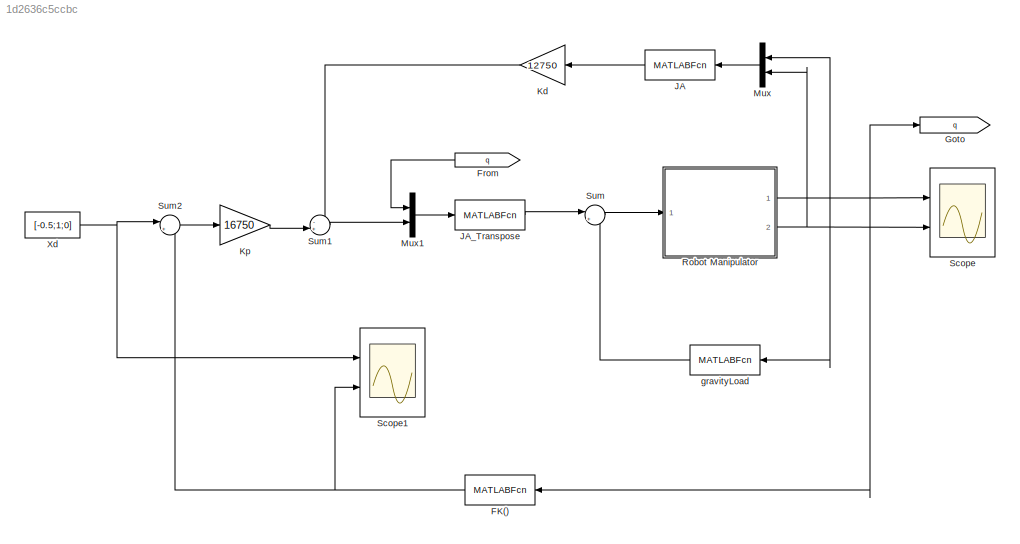
MODEL slx_1d2636c5ccbc
KIND model
CONFIG AbsTol = auto
CONFIG EnableMultiTasking = off
CONFIG FixedStep = auto
CONFIG MaxStep = auto
CONFIG MinStep = auto
CONFIG RelTol = 1e-3
CONFIG SampleTimeConstraint = Unconstrained
CONFIG SolverName = VariableStepAuto
CONFIG StartTime = 0.0
CONFIG StopTime = 10
BLOCK [MATLABFcn] FK()
  MATLABFcn = fwdKine(u)
  Ports = [1, 1]
BLOCK [From] From
  GotoTag = q
BLOCK [Goto] Goto
  GotoTag = q
BLOCK [MATLABFcn] JA
  MATLABFcn = analyticalJacobian(u)*u(n_links+1:end,1)
  Ports = [1, 1]
BLOCK [MATLABFcn] JA_Transpose
  MATLABFcn = analyticalJacobian(u)'*u(n_links+1:end,1)
  Ports = [1, 1]
BLOCK [Gain] Kd
  Gain = 12750
BLOCK [Gain] Kp
  Gain = 16750
BLOCK [Mux] Mux
  DisplayOption = bar
  Inputs = 2
  Ports = [2, 1]
BLOCK [Mux] Mux1
  DisplayOption = bar
  Inputs = 2
  Ports = [2, 1]
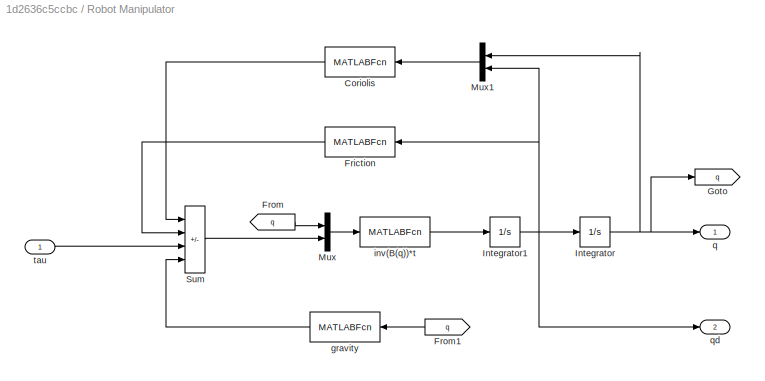
BLOCK [SubSystem] Robot Manipulator
  Ports = [1, 2]
  RequestExecContextInheritance = off
BLOCK [MATLABFcn] Robot Manipulator/Coriolis
  MATLABFcn = C_matrix(u)*u(n_links+1:end,1)
  Ports = [1, 1]
BLOCK [MATLABFcn] Robot Manipulator/Friction
  MATLABFcn = Friction(u)
  Ports = [1, 1]
BLOCK [From] Robot Manipulator/From
  GotoTag = q
BLOCK [From] Robot Manipulator/From1
  GotoTag = q
BLOCK [Goto] Robot Manipulator/Goto
  GotoTag = q
BLOCK [Integrator] Robot Manipulator/Integrator
  InitialCondition = [pi/3; -pi/3 ;0]
  Ports = [1, 1]
BLOCK [Integrator] Robot Manipulator/Integrator1
  InitialCondition = [0;0;0]
  Ports = [1, 1]
BLOCK [Mux] Robot Manipulator/Mux
  DisplayOption = bar
  Inputs = 2
  Ports = [2, 1]
BLOCK [Mux] Robot Manipulator/Mux1
  DisplayOption = bar
  Inputs = 2
  Ports = [2, 1]
BLOCK [Sum] Robot Manipulator/Sum
  IconShape = rectangular
  InputSameDT = on
  Inputs = --+-
  OutDataTypeStr = Inherit: Same as first input
  Ports = [4, 1]
  SaturateOnIntegerOverflow = on
BLOCK [MATLABFcn] Robot Manipulator/gravity
  MATLABFcn = GravityVector(u)
  Ports = [1, 1]
BLOCK [MATLABFcn] Robot Manipulator/inv(B(q))*t
  MATLABFcn = inv(B_matrix(u))*u(n_links+1:end,1)
  Ports = [1, 1]
BLOCK [Outport] Robot Manipulator/q
  VectorParamsAs1DForOutWhenUnconnected = off
BLOCK [Outport] Robot Manipulator/qd
  Port = 2
  VectorParamsAs1DForOutWhenUnconnected = off
BLOCK [Inport] Robot Manipulator/tau
BLOCK [Scope] Scope
  Floating = off
  NumInputPorts = 2
  Ports = [2]
  ScopeSpecificationString = Simulink.scopes.TimeScopeBlockCfg('CurrentConfiguration', extmgr.ConfigurationSet(extmgr.Configuration('Core','General UI',true),extmgr.Configuration('Core','Source UI',true),extmgr.Configuration('Sources','WiredSimulink',true),extmgr.Configuration('Visuals','Time Domain',true,'SerializedDisplays',{struct('MinYLimReal','-2.93881','MaxYLimReal','3.96413','YLabelReal','','MinYLimMag','0.00000','MaxY...<+2063ch>
BLOCK [Scope] Scope1
  Floating = off
  NumInputPorts = 2
  Ports = [2]
  ScopeSpecificationString = Simulink.scopes.TimeScopeBlockCfg('CurrentConfiguration', extmgr.ConfigurationSet(extmgr.Configuration('Core','General UI',true),extmgr.Configuration('Core','Source UI',true),extmgr.Configuration('Sources','WiredSimulink',true,'DataLoggingVariableName','ScopeData1'),extmgr.Configuration('Visuals','Time Domain',true,'SerializedDisplays',{struct('MinYLimReal','-0.6875','MaxYLimReal','1.1875','YLabel...<+2060ch>
BLOCK [Sum] Sum
  Inputs = |++
  Ports = [2, 1]
BLOCK [Sum] Sum1
  Inputs = -+|
  Ports = [2, 1]
BLOCK [Sum] Sum2
  Inputs = |+-
  Ports = [2, 1]
BLOCK [Constant] Xd
  Value = [-0.5;1;0]
BLOCK [MATLABFcn] gravityLoad 
  MATLABFcn = gravity_load(u)
  Ports = [1, 1]
NET FK():1 -> Scope1:2, Sum2:2
LINE From:1 -> Mux1:1
LINE JA:1 -> Kd:1
LINE JA_Transpose:1 -> Sum:1
LINE Kd:1 -> Sum1:1
LINE Kp:1 -> Sum1:2
LINE Mux1:1 -> JA_Transpose:1
LINE Mux:1 -> JA:1
LINE Robot Manipulator/Coriolis:1 -> Robot Manipulator/Sum:1
LINE Robot Manipulator/Friction:1 -> Robot Manipulator/Sum:2
LINE Robot Manipulator/From1:1 -> Robot Manipulator/gravity:1
LINE Robot Manipulator/From:1 -> Robot Manipulator/Mux:1
NET Robot Manipulator/Integrator1:1 -> Robot Manipulator/Friction:1, Robot Manipulator/Integrator:1, Robot Manipulator/Mux1:2, Robot Manipulator/qd:1
NET Robot Manipulator/Integrator:1 -> Robot Manipulator/Goto:1, Robot Manipulator/Mux1:1, Robot Manipulator/q:1
LINE Robot Manipulator/Mux1:1 -> Robot Manipulator/Coriolis:1
LINE Robot Manipulator/Mux:1 -> Robot Manipulator/inv(B(q))*t:1
LINE Robot Manipulator/Sum:1 -> Robot Manipulator/Mux:2
LINE Robot Manipulator/gravity:1 -> Robot Manipulator/Sum:4
LINE Robot Manipulator/inv(B(q))*t:1 -> Robot Manipulator/Integrator1:1
LINE Robot Manipulator/tau:1 -> Robot Manipulator/Sum:3
NET Robot Manipulator:1 -> FK():1, Goto:1, Mux:1, Scope:1, gravityLoad :1
NET Robot Manipulator:2 -> Mux:2, Scope:2
LINE Sum1:1 -> Mux1:2
LINE Sum2:1 -> Kp:1
LINE Sum:1 -> Robot Manipulator:1
NET Xd:1 -> Scope1:1, Sum2:1
LINE gravityLoad :1 -> Sum:2
note: NET lines group one-source signal fan-out (src -> all destinations, sorted); 1:1 wires keep LINE
